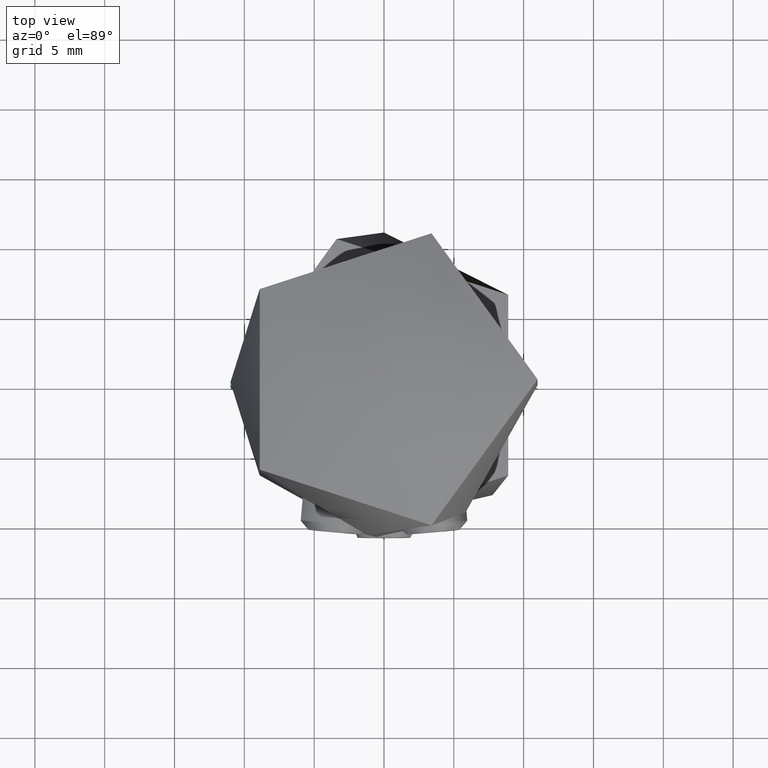
[diagram: clean part render]
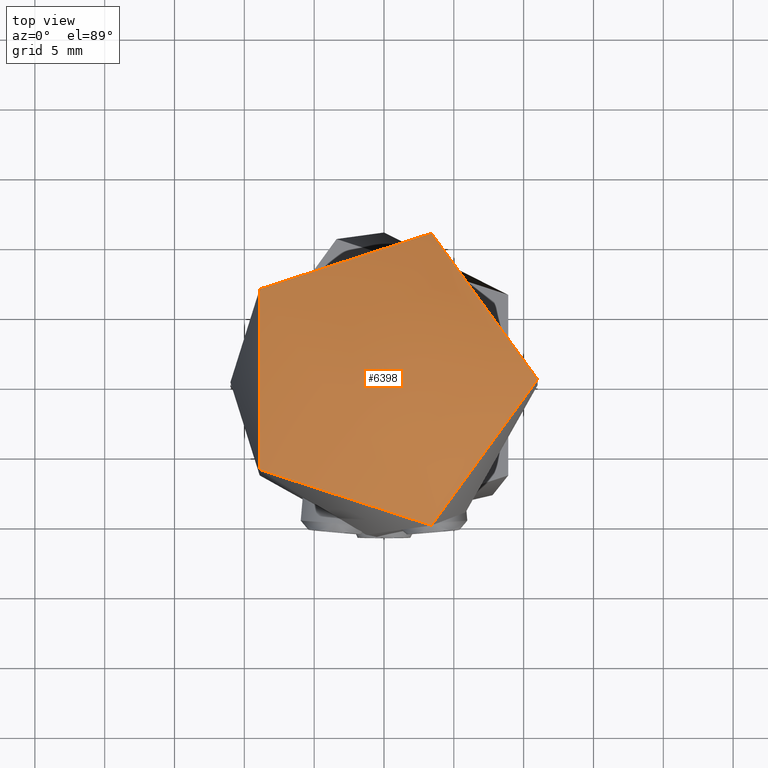
[diagram: same view with one face highlighted and labeled with its STEP entity id]
A machine part, top view. The second image highlights one B-rep face of the part: STEP entity #6398.
In plain terms, the highlighted spherical surface has radius 28 mm.
Its self-contained STEP definition (entity closure, byte-faithful):
#3190 = ORIENTED_EDGE ( 'NONE', *, *, #23707, .T. ) ;
#3683 = DIRECTION ( 'NONE',  ( -0.0000000000000000000, -0.0000000000000000000, 1.000000000000000000 ) ) ;
#5322 = EDGE_LOOP ( 'NONE', ( #3190 ) ) ;
#6100 = DIRECTION ( 'NONE',  ( -1.000000000000000000, 0.0000000000000000000, 0.0000000000000000000 ) ) ;
#6398 = ADVANCED_FACE ( 'NONE', ( #17252 ), #24457, .T. ) ;
#8131 = DIRECTION ( 'NONE',  ( 0.0000000000000000000, 1.000000000000000000, 0.0000000000000000000 ) ) ;
#8223 = CARTESIAN_POINT ( 'NONE',  ( 0.0000000000000000000, 0.0000000000000000000, -2.000000000000008900 ) ) ;
#8635 = AXIS2_PLACEMENT_3D ( 'NONE', #8223, #6100, #8131 ) ;
#11856 = AXIS2_PLACEMENT_3D ( 'NONE', #27417, #3683, #25591 ) ;
#17252 = FACE_OUTER_BOUND ( 'NONE', #5322, .T. ) ;
#21694 = VERTEX_POINT ( 'NONE', #24426 ) ;
#23707 = EDGE_CURVE ( 'NONE', #21694, #21694, #26660, .T. ) ;
#24426 = CARTESIAN_POINT ( 'NONE',  ( 10.99999999999999600, 0.0000000000000000000, 23.74878637916747000 ) ) ;
#24457 = SPHERICAL_SURFACE ( 'NONE', #8635, 28.00000000000000400 ) ;
#25591 = DIRECTION ( 'NONE',  ( 1.000000000000000000, 0.0000000000000000000, 0.0000000000000000000 ) ) ;
#26660 = CIRCLE ( 'NONE', #11856, 10.99999999999999600 ) ;
#27417 = CARTESIAN_POINT ( 'NONE',  ( 0.0000000000000000000, 0.0000000000000000000, 23.74878637916747000 ) ) ;